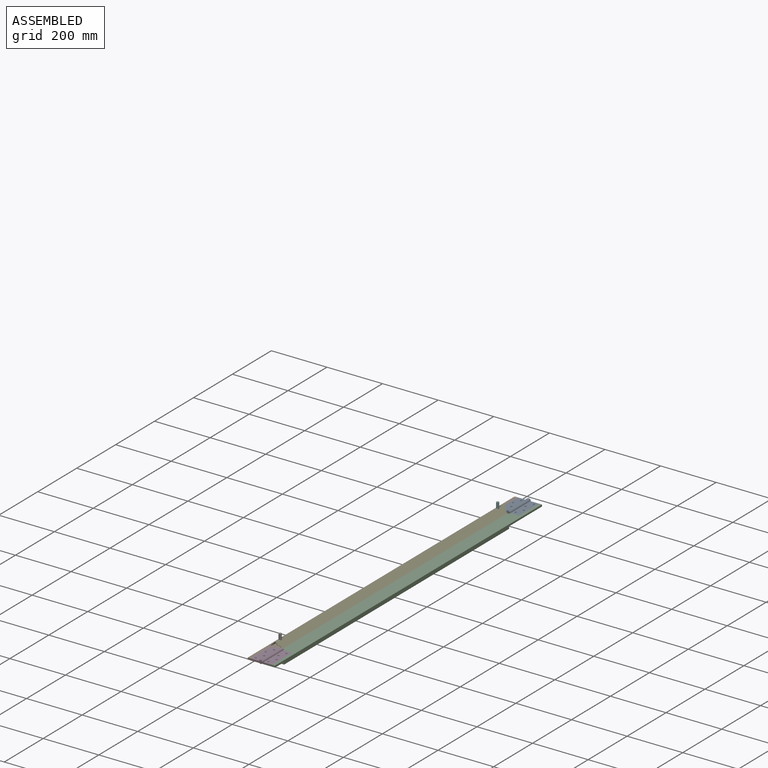
[diagram: assembled view]
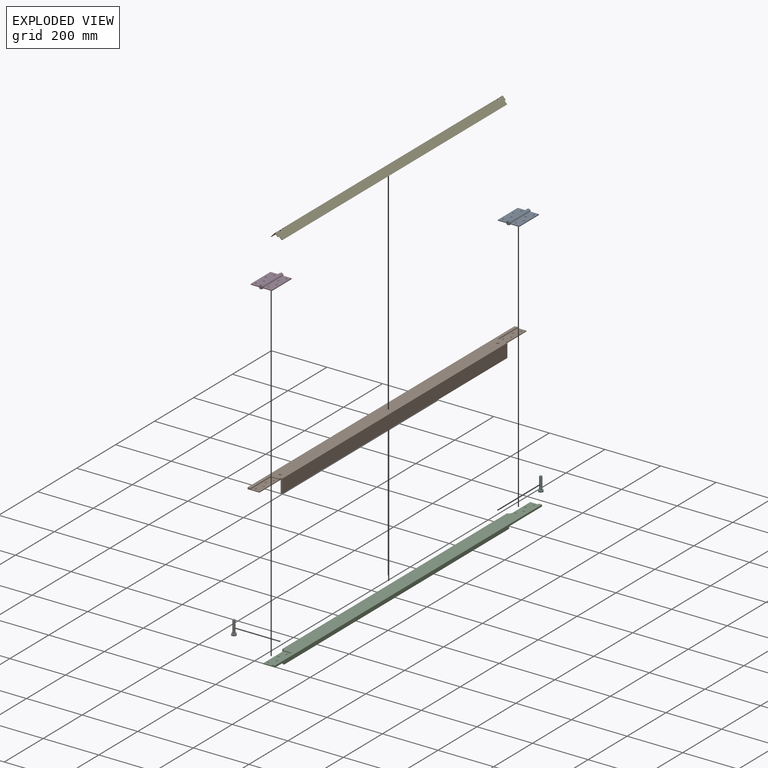
[diagram: exploded view]
GUIDED TOUR — MATED ASSEMBLY WITH SUBASSEMBLIES (Onshape document 305de8d9b51975641aac038a, AutoMate assembly 305de8d9b51975641aac038a_1db2082238140604867633bc_43c325b43dd5f36ea23384e1_default)

This assembly has 11 component occurrences arranged in 7 top-level units: 5 individual components plus 2 subassemblies (S0, S1). The tour has two levels: first the top level, where each subassembly is treated as one rigid unit; then each subassembly is toured internally in its own section (nesting deeper than one subassembly level is flattened into its subassembly's section).

Components are labeled P0..P10 across the whole record; subassembly units are labeled S0..S1. A mate is a constraint between two units; its type names the relative motion it leaves free:
  CYLINDRICAL — leaves both rotation about and translation along the listed axis free,
  FASTENED — locks the two components together rigidly (no relative motion),
  REVOLUTE — leaves rotation about the listed axis free (a hinge),
  SLIDER — leaves translation along the listed axis free.
Axis/direction vectors are unit vectors and 'through' points are millimeter coordinates, both in the assembly's world frame.

TOP-LEVEL MATES (between units; each subassembly's internal mates are listed in its own section)
  1. SLIDER "Slider 1": P5 <-> P10, axis (0.000, 0.000, 1.000) through (3.28, -558.80, 42.75) mm
  2. FASTENED "Fastened 1": S1 <-> P1, direction (0.000, 0.000, -1.000) through (1.99, -635.00, 21.44) mm
  3. FASTENED "Fastened 4": P9 <-> P1, direction (0.000, 0.000, 1.000) through (3.28, 558.80, 18.26) mm
  4. CYLINDRICAL "Cylindrical 1": P5 <-> P9, axis (0.000, 0.000, 1.000) through (3.28, 558.80, 42.75) mm
  5. FASTENED "Fastened 2": S1 <-> P2, direction (0.001, 0.000, -1.000) through (41.19, -673.10, 21.45) mm
  6. FASTENED "Fastened 3": S0 <-> P2, direction (0.001, 0.000, -1.000) through (53.09, 673.10, 21.46) mm
  7. FASTENED "Fastened 5": P10 <-> P1, direction (0.000, 0.000, 1.000) through (3.28, -558.80, 18.26) mm

TOP-LEVEL ASSEMBLY ORDER
  1. P2 — the base component [order verified]
  2. P1 [order verified]
  3. S1 [order verified]
  4. P5 [order verified]
  5. S0 [order verified]
  6. P10 [order verified]
  7. P9 [order verified]
Order-tag legend:
  [order verified] — this step's position reverses a verified removal order: the component was checked to insert without passing through the ones already placed.

Of the 11 component occurrences, 8 carry the full construction recipe — the FeatureScript program that regenerates the part's solid from scratch; the rest are supplied as boundary geometry only. Each toured unit is shown spotlighted twice — assembled, then exploded with a leader line back to its socket (green = recipe-attached component, orange = geometry-only, blue = subassembly unit; the rest desaturated gray).
NOTE — document 2 of 2 of this assembly tour. The two overview renders and the header above are repeated from document 1; the component sections below continue where the previous document stopped.
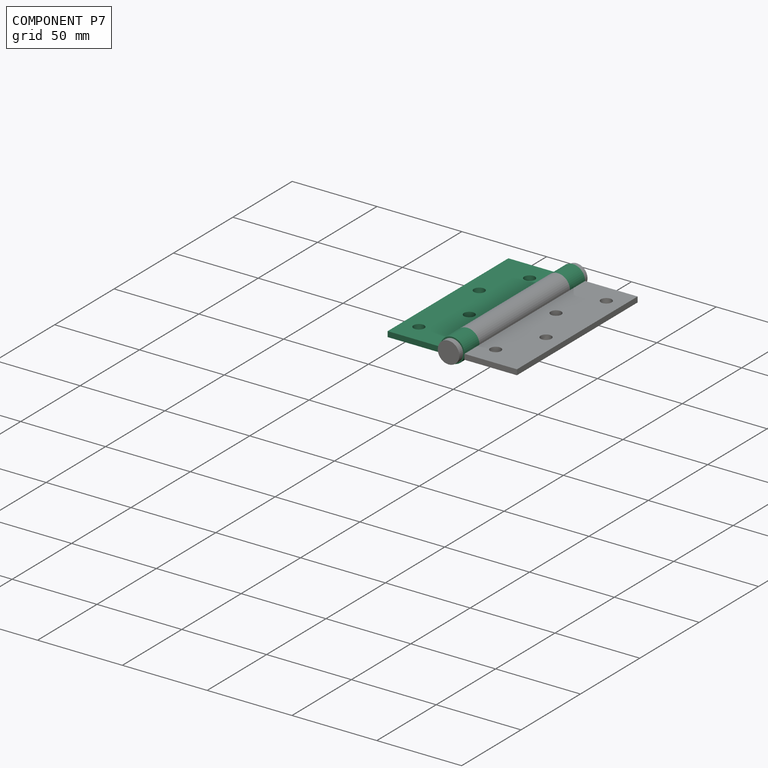
[diagram: component P7 — assembled]
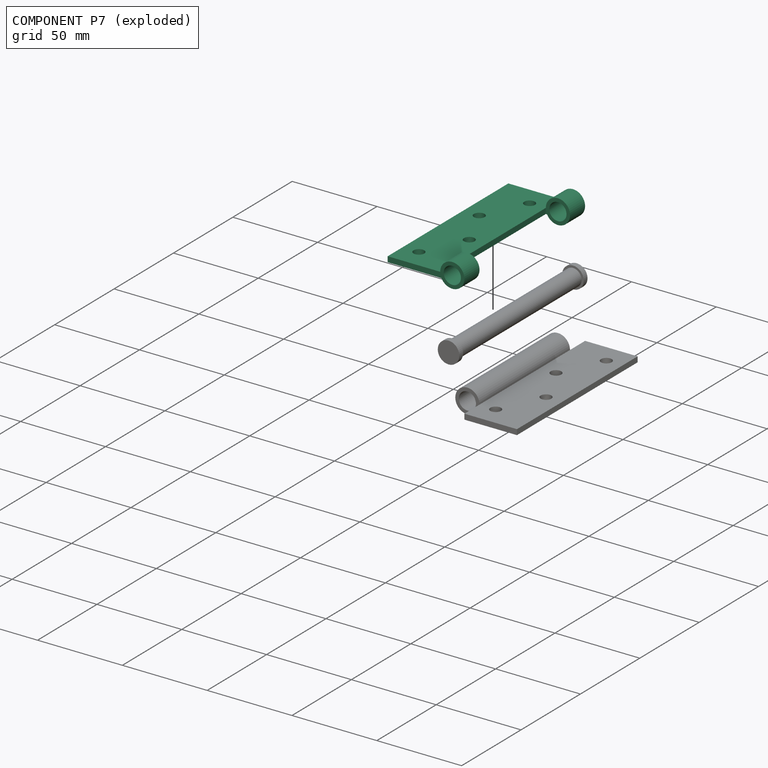
[diagram: component P7 — exploded]
COMPONENT P7 — recipe-attached (CADFS 00823982, mesh-verified: the recipe's output STEP matches this component's geometry to below the mesh-comparison resolution (tessellation chordal tolerance ~0.168 mm)).
Held by: REVOLUTE mate "Revolute 2" to P3; REVOLUTE mate "Revolute 1" to P8; REVOLUTE mate "Revolute 2" to P3; REVOLUTE mate "Revolute 1" to P8.
Construction recipe (FeatureScript — the CAD program that rebuilds this solid; sketch coordinates are in the units given by the * unit suffixes, e.g. mm):

FeatureScript 1511;
import(path : "onshape/std/geometry.fs", version : "1511.0");
import(path : "onshape/std/common.fs", version : "1511.0");
const mm = millimeter;
const VERTEX = EntityType.VERTEX;
const EDGE = EntityType.EDGE;
const FACE = EntityType.FACE;
const BODY = EntityType.BODY;
function v(x, y){return vector(x, y);}
function OD(order){return orderDisambiguation(order);}
function OSD(set){return originalSetDisambiguation(set);}
function TD(topology){return topologyDisambiguation(topology);}
function TDD(query){return trueDependencyDisambiguation(query);}
function sQuery(a, b, c) {return sketchEntityQuery(a, b, c);}

annotation { "Feature Type Name" : "Feature", "Feature Type Description" : "" }
export const myFeature = defineFeature(function(context is Context, id is Id, definition is map)
    precondition{}
    {
        {
            var Q0;
            Q0=qCreatedBy(makeId("Front.planeOp"),FACE);
            var sketch = newSketch(context, id + "F0", { "sketchPlane" : qUnion([Q0])});
            skCircle(sketch, "E0", {"center": v(14.64, 0) * mm, "radius": 7.14 * mm});
            skCircle(sketch, "E1", {"center": v(14.64, 0) * mm, "radius": 5.08 * mm});
            skLineSegment(sketch, "E2.right", {"start": v(-23.46, 0) * mm, "end": v(-23.46, -3.17) * mm});
            skLineSegment(sketch, "E3.trimOffspring", {"start": v(7.5, 0) * mm, "end": v(-23.46, 0) * mm});
            skLineSegment(sketch, "E4", {"start": v(7.5, 0) * mm, "end": v(14.64, 0) * mm, "construction": true});
            skLineSegment(sketch, "E5", {"start": v(14.64, 0) * mm, "end": v(14.64, -3.17) * mm, "construction": true});
            skLineSegment(sketch, "E6.trimOffspring", {"start": v(8.24, -3.17) * mm, "end": v(-23.46, -3.17) * mm});
            skLineSegment(sketch, "E7", {"start": v(8.24, -3.17) * mm, "end": v(14.64, -3.17) * mm, "construction": true});
            skSolve(sketch);
        }
        {
            var Q0;
            Q0=makeQuery(id+"F0.imprint","IMPRINT",FACE,{"disambiguationData":[TD([[makeQuery(id+"F0.imprint","IMPRINT",EDGE,{"derivedFrom":sQuery(id+"F0.wireOp",EDGE,"E2.right")}),1.0]])]});
            var Q1;
            Q1=makeQuery(id+"F0.imprint","IMPRINT",FACE,{"disambiguationData":[TD([[makeQuery(id+"F0.imprint","IMPRINT",EDGE,{"derivedFrom":sQuery(id+"F0.wireOp",EDGE,"E1")}),-1.0]])]});
            extrude(context, id + "F1", {"entities" : qUnion([Q0, Q1]), "endBound" : BoundingType.SYMMETRIC, "depth" : 101.6 * mm, "offsetDistance" : 25.4 * mm});
        }
        {
            var Q0;
            Q0=qCreatedBy(makeId("Top.planeOp"),FACE);
            var sketch = newSketch(context, id + "F2", { "sketchPlane" : qUnion([Q0])});
            skLineSegment(sketch, "E8.bottom", {"start": v(22.96, 38.1) * mm, "end": v(7.5, 38.1) * mm});
            skLineSegment(sketch, "E8.top", {"start": v(22.96, -38.1) * mm, "end": v(7.5, -38.1) * mm});
            skLineSegment(sketch, "E8.left", {"start": v(22.96, 38.1) * mm, "end": v(22.96, -38.1) * mm});
            skLineSegment(sketch, "E8.right", {"start": v(7.5, 38.1) * mm, "end": v(7.5, -38.1) * mm});
            skSolve(sketch);
        }
        {
            var Q0;
            Q0 = qSketchRegion(id + "F2", true);
            extrude(context, id + "F3", {"entities" : qUnion([Q0]), "operationType" : NewBodyOperationType.REMOVE, "endBound" : BoundingType.SYMMETRIC, "oppositeDirection" : true, "depth" : 25.4 * mm, "offsetDistance" : 25.4 * mm});
        }
        {
            var Q0;
            Q0=makeQuery(id+"F1.opExtrude","SWEPT_FACE",FACE,{"disambiguationData":[OSD([sQuery(id+"F0.wireOp",EDGE,"E3.trimOffspring")])]});
            var sketch = newSketch(context, id + "F4", { "sketchPlane" : qUnion([Q0])});
            skCircle(sketch, "E9", {"center": v(-2.03, 38.1) * mm, "radius": 3.18 * mm});
            skCircle(sketch, "E10", {"center": v(-2.03, -12.7) * mm, "radius": 3.18 * mm});
            skCircle(sketch, "E11", {"center": v(-13.93, 12.7) * mm, "radius": 3.18 * mm});
            skCircle(sketch, "E12", {"center": v(-13.93, -38.1) * mm, "radius": 3.18 * mm});
            skSolve(sketch);
        }
        {
            var Q0;
            Q0=sQuery(id+"F4.wireOp",VERTEX,"E9.center");
            var Q1;
            Q1=sQuery(id+"F4.wireOp",VERTEX,"E11.center");
            var Q2;
            Q2=sQuery(id+"F4.wireOp",VERTEX,"E10.center");
            var Q3;
            Q3=sQuery(id+"F4.wireOp",VERTEX,"E12.center");
            var Q4;
            Q4=makeQuery(id+"F1.opExtrude","SWEPT_BODY",BODY,{"disambiguationData":[OSD([sQuery(id+"F0.wireOp",EDGE,"E0"),sQuery(id+"F0.wireOp",EDGE,"E1"),sQuery(id+"F0.wireOp",EDGE,"E2.right"),sQuery(id+"F0.wireOp",EDGE,"E3.trimOffspring"),sQuery(id+"F0.wireOp",EDGE,"E6.trimOffspring")])]});
            hole(context, id + "F5", {"style" : HoleStyle.SIMPLE, "endStyle" : HoleEndStyle.THROUGH, "holeDiameter" : 6.35 * mm, "majorDiameter" : 6.35 * mm, "isTappedThrough" : true, "tappedDepth" : 12.7 * mm, "tapClearance" : 3, "locations" : qUnion([Q0, Q1, Q2, Q3]), "scope" : qUnion([Q4])});
        }
    });
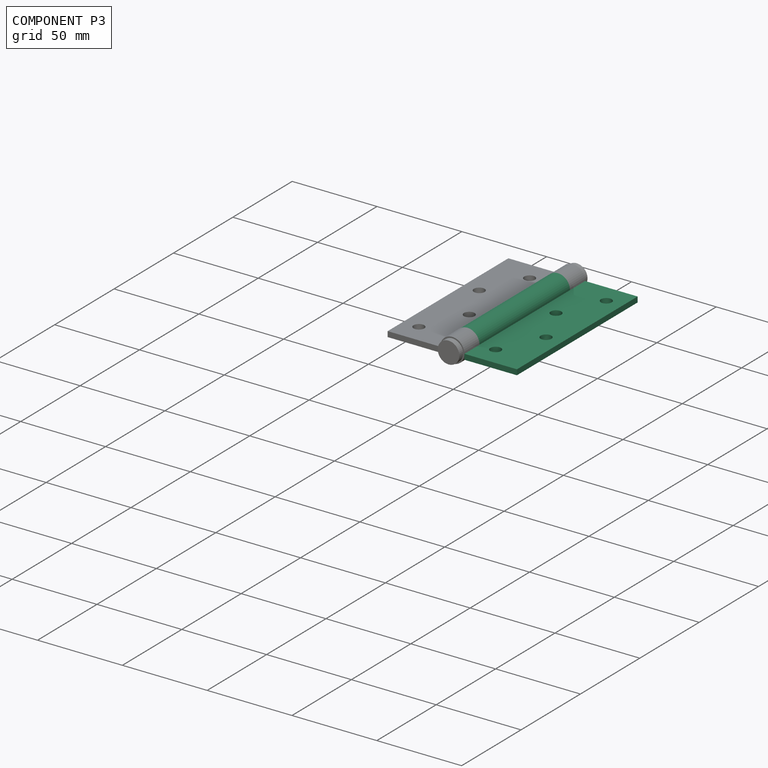
[diagram: component P3 — assembled]
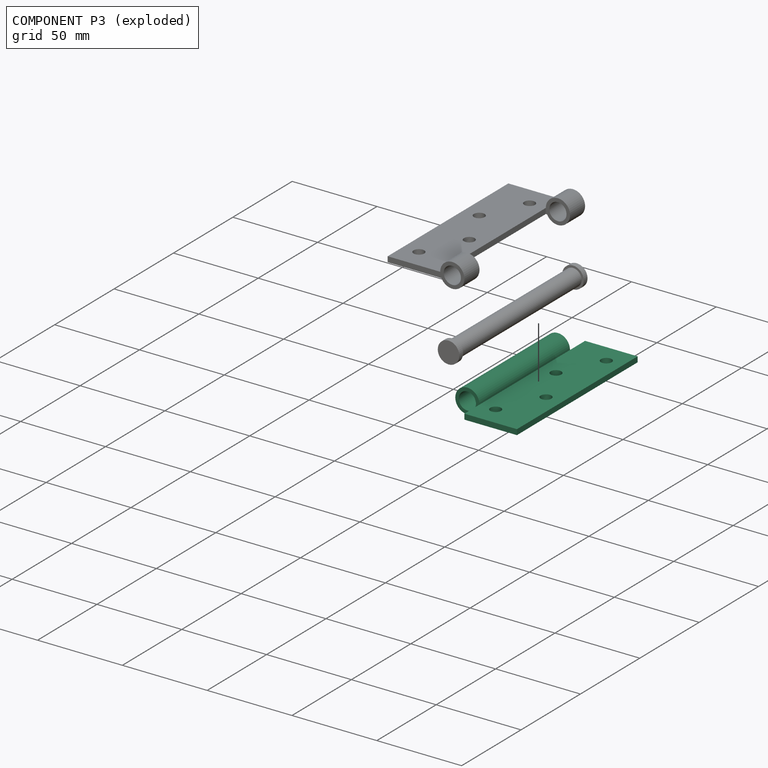
[diagram: component P3 — exploded]
COMPONENT P3 — recipe-attached (CADFS 00823978, mesh-verified: the recipe's output STEP matches this component's geometry to below the mesh-comparison resolution (tessellation chordal tolerance ~0.168 mm)).
Held by: REVOLUTE mate "Revolute 2" to P7; REVOLUTE mate "Revolute 2" to P7.
Construction recipe (FeatureScript — the CAD program that rebuilds this solid; sketch coordinates are in the units given by the * unit suffixes, e.g. mm):

FeatureScript 1511;
import(path : "onshape/std/geometry.fs", version : "1511.0");
import(path : "onshape/std/common.fs", version : "1511.0");
const mm = millimeter;
const VERTEX = EntityType.VERTEX;
const EDGE = EntityType.EDGE;
const FACE = EntityType.FACE;
const BODY = EntityType.BODY;
function v(x, y){return vector(x, y);}
function OD(order){return orderDisambiguation(order);}
function OSD(set){return originalSetDisambiguation(set);}
function TD(topology){return topologyDisambiguation(topology);}
function TDD(query){return trueDependencyDisambiguation(query);}
function sQuery(a, b, c) {return sketchEntityQuery(a, b, c);}

annotation { "Feature Type Name" : "Feature", "Feature Type Description" : "" }
export const myFeature = defineFeature(function(context is Context, id is Id, definition is map)
    precondition{}
    {
        {
            var Q0;
            Q0=qCreatedBy(makeId("Front.planeOp"),FACE);
            var sketch = newSketch(context, id + "F0", { "sketchPlane" : qUnion([Q0])});
            skLineSegment(sketch, "E0.MirrorCS", {"start": v(7.14, 3.17) * mm, "end": v(38.1, 3.17) * mm});
            skLineSegment(sketch, "E1.MirrorCS", {"start": v(6.4, 0) * mm, "end": v(38.1, 0) * mm});
            skLineSegment(sketch, "E2.MirrorCS", {"start": v(38.1, 3.17) * mm, "end": v(38.1, 0) * mm});
            skCircle(sketch, "E3.MirrorC", {"center": v(0, 3.17) * mm, "radius": 7.14 * mm});
            skCircle(sketch, "E4.MirrorC", {"center": v(0, 3.17) * mm, "radius": 5.08 * mm});
            skLineSegment(sketch, "E5.MirrorCS", {"start": v(7.14, 3.17) * mm, "end": v(0, 3.17) * mm, "construction": true});
            skLineSegment(sketch, "E6.MirrorCS", {"start": v(0, 3.17) * mm, "end": v(0, 0) * mm, "construction": true});
            skLineSegment(sketch, "E7.MirrorCS", {"start": v(6.4, 0) * mm, "end": v(0, 0) * mm, "construction": true});
            skSolve(sketch);
        }
        {
            var Q0;
            Q0 = qSketchRegion(id + "F0", true);
            extrude(context, id + "F1", {"entities" : qUnion([Q0]), "endBound" : BoundingType.SYMMETRIC, "depth" : 101.6 * mm, "offsetDistance" : 25.4 * mm});
        }
        {
            var Q0;
            Q0=qCreatedBy(makeId("Top.planeOp"),FACE);
            var sketch = newSketch(context, id + "F2", { "sketchPlane" : qUnion([Q0])});
            skLineSegment(sketch, "E8.bottom", {"start": v(7.14, 38.1) * mm, "end": v(-7.26, 38.1) * mm});
            skLineSegment(sketch, "E8.top", {"start": v(7.14, 50.8) * mm, "end": v(-7.26, 50.8) * mm});
            skLineSegment(sketch, "E8.left", {"start": v(7.14, 38.1) * mm, "end": v(7.14, 50.8) * mm});
            skLineSegment(sketch, "E8.right", {"start": v(-7.26, 38.1) * mm, "end": v(-7.26, 50.8) * mm});
            skLineSegment(sketch, "E9.bottom", {"start": v(7.14, -38.1) * mm, "end": v(-7.26, -38.1) * mm});
            skLineSegment(sketch, "E9.top", {"start": v(7.14, -50.8) * mm, "end": v(-7.26, -50.8) * mm});
            skLineSegment(sketch, "E9.left", {"start": v(7.14, -38.1) * mm, "end": v(7.14, -50.8) * mm});
            skLineSegment(sketch, "E9.right", {"start": v(-7.26, -38.1) * mm, "end": v(-7.26, -50.8) * mm});
            skSolve(sketch);
        }
        {
            var Q0;
            Q0 = qSketchRegion(id + "F2", true);
            extrude(context, id + "F3", {"entities" : qUnion([Q0]), "operationType" : NewBodyOperationType.REMOVE, "endBound" : BoundingType.SYMMETRIC, "oppositeDirection" : true, "depth" : 25.4 * mm, "offsetDistance" : 25.4 * mm});
        }
        {
            var Q0;
            Q0=makeQuery(id+"F1.opExtrude","SWEPT_FACE",FACE,{"disambiguationData":[OSD([sQuery(id+"F0.wireOp",EDGE,"E0.MirrorCS")])]});
            var sketch = newSketch(context, id + "F4", { "sketchPlane" : qUnion([Q0])});
            skCircle(sketch, "E10", {"center": v(28.58, 38.1) * mm, "radius": 3.18 * mm});
            skCircle(sketch, "E11", {"center": v(28.58, -12.7) * mm, "radius": 3.18 * mm});
            skCircle(sketch, "E12", {"center": v(16.67, 12.7) * mm, "radius": 3.18 * mm});
            skCircle(sketch, "E13", {"center": v(16.67, -38.1) * mm, "radius": 3.18 * mm});
            skSolve(sketch);
        }
        {
            var Q0;
            Q0=sQuery(id+"F4.wireOp",VERTEX,"E10.center");
            var Q1;
            Q1=sQuery(id+"F4.wireOp",VERTEX,"E12.center");
            var Q2;
            Q2=sQuery(id+"F4.wireOp",VERTEX,"E11.center");
            var Q3;
            Q3=sQuery(id+"F4.wireOp",VERTEX,"E13.center");
            var Q4;
            Q4=makeQuery(id+"F1.opExtrude","SWEPT_BODY",BODY,{"disambiguationData":[OSD([sQuery(id+"F0.wireOp",EDGE,"E0.MirrorCS"),sQuery(id+"F0.wireOp",EDGE,"E1.MirrorCS"),sQuery(id+"F0.wireOp",EDGE,"E2.MirrorCS"),sQuery(id+"F0.wireOp",EDGE,"E3.MirrorC"),sQuery(id+"F0.wireOp",EDGE,"E4.MirrorC")])]});
            hole(context, id + "F5", {"style" : HoleStyle.SIMPLE, "endStyle" : HoleEndStyle.THROUGH, "holeDiameter" : 6.35 * mm, "majorDiameter" : 6.35 * mm, "isTappedThrough" : true, "tappedDepth" : 12.7 * mm, "tapClearance" : 3, "locations" : qUnion([Q0, Q1, Q2, Q3]), "scope" : qUnion([Q4])});
        }
    });
PROVENANCE & LICENSES
Assembly (occurrences, transforms, mates, per-part STEP geometry): AutoMate dataset, Zenodo record 7776208, CC0.
Construction recipes: CADFS (HuggingFace VladPyatov/CADFS, CC-BY-4.0, layered over the ABC dataset), FeatureScript reconstruction programs keyed by ABC model id.
Join: ABC meta listings map ABC model id -> Onshape documentId; within a shared document, parts are matched by geometric signature (bounding-box dims + volume at 0.1% relative tolerance, exact B-rep face/solid counts).
Verification: 8 of this assembly's 11 components carry a recipe attachment, and every attachment is mesh-verified: the CADFS STEP and the AutoMate member STEP were compared as meshes in their shared local frame (symmetric sampled-point-to-mesh distance); worst across the 8 attachments: below the mesh-comparison resolution (tessellation chordal tolerance ~0.168 mm) on a 112 mm part.
Renders: orthographic iso camera (az 35 / el 25); the floor grid conveys scale (grid pitch printed in each image; no ruler). In the exploded view each component is displaced by its stored offset vector: the offsets alone carry the explosion direction (mate normal/axis signs are not orientation cues and do not encode it), and separation distances are assigned per mate-chain, not proportionally to assembly-order depth.
